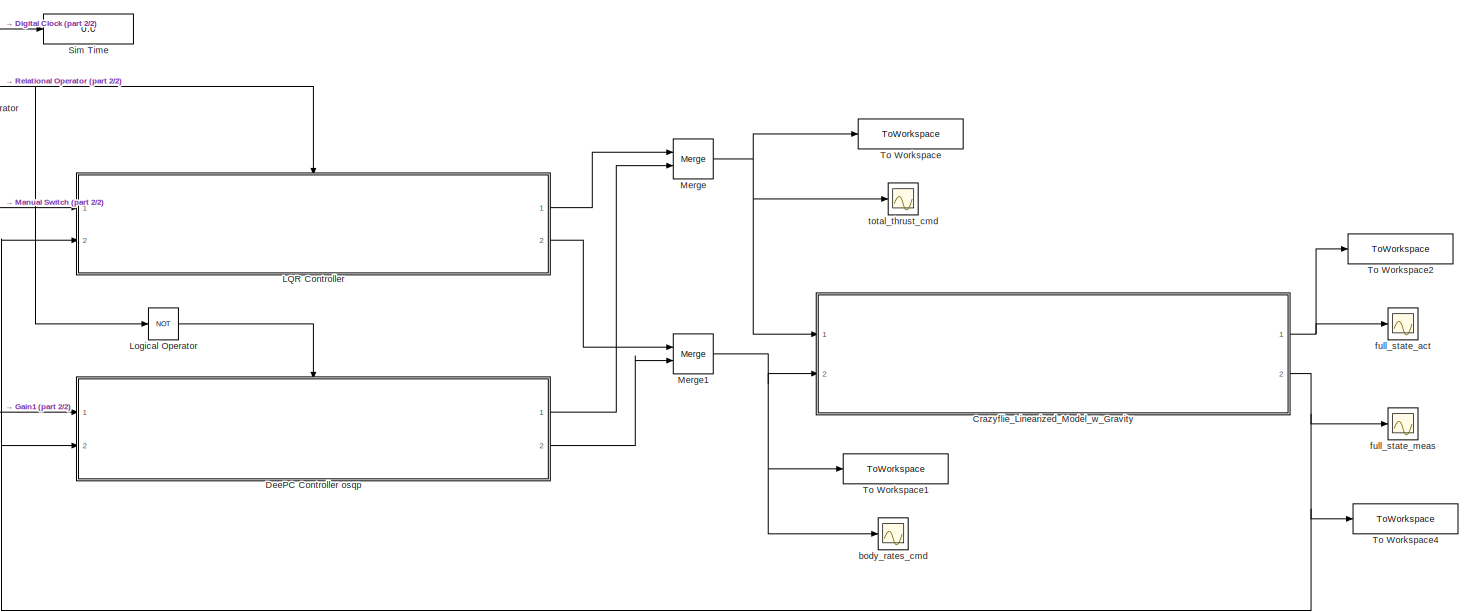
[diagram: root canvas - part 1/2, center side, full height]
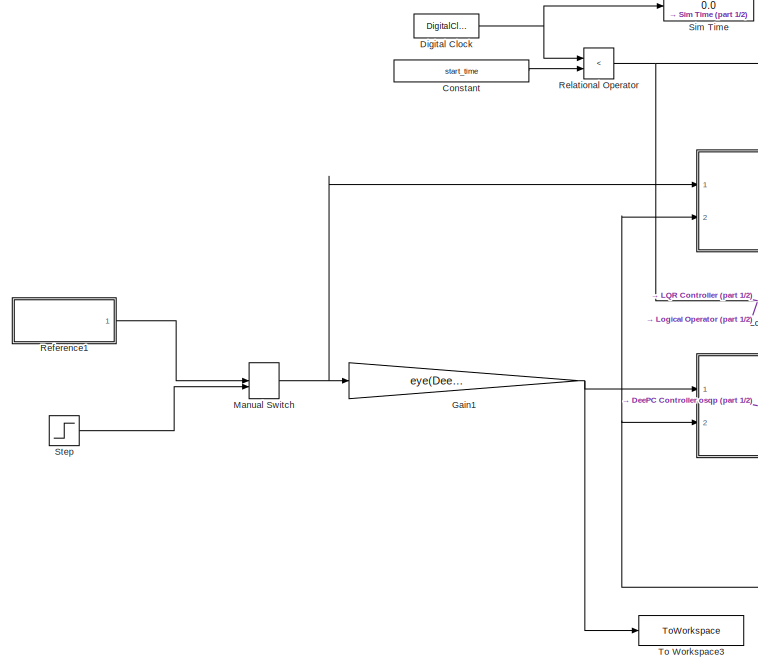
[diagram: root canvas - part 2/2, left side, full height]
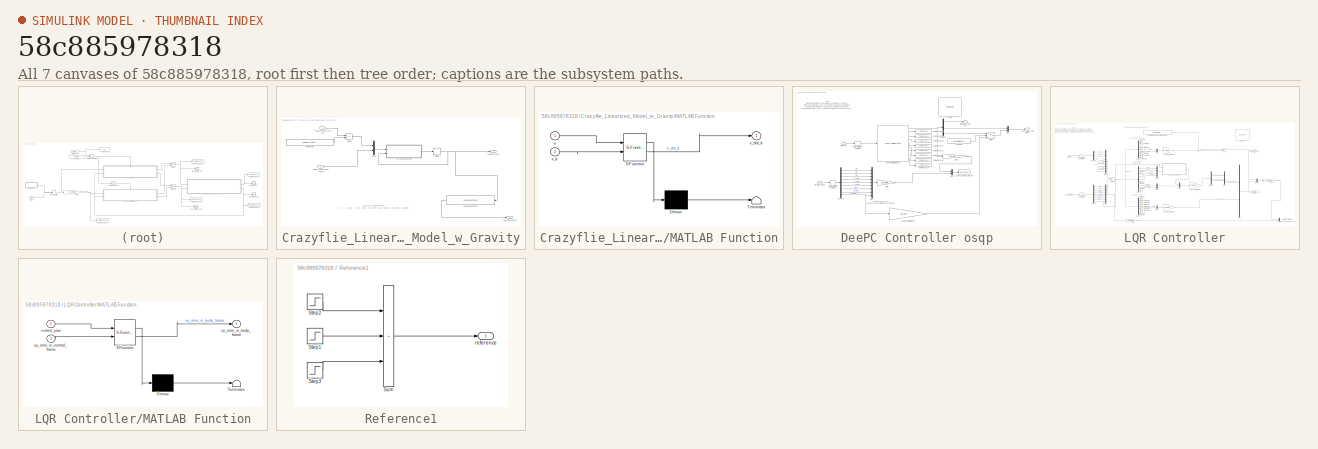
[diagram: thumbnail index - all 7 canvases of the model, root first then tree order]
MODEL slx_58c885978318
KIND model
CONFIG AbsTol = auto
CONFIG EnableMultiTasking = off
CONFIG FixedStep = auto
CONFIG MaxStep = auto
CONFIG MinStep = auto
CONFIG RelTol = 1e-3
CONFIG SampleTimeConstraint = Unconstrained
CONFIG SolverName = VariableStepAuto
CONFIG StartTime = 0.0
CONFIG StopTime = sim_time
BLOCK [Constant] Constant
  Value = start_time
BLOCK [SubSystem] Crazyflie_Linearized_Model_w_Gravity
  AncestorBlock = Crazyflie_Library/Crazyflie_Linearized_Model_w_Gravity
  Ports = [2, 2]
  RequestExecContextInheritance = off
BLOCK [Sum] Crazyflie_Linearized_Model_w_Gravity/Add1
  IconShape = rectangular
  Inputs = +-
  Ports = [2, 1]
BLOCK [Constant] Crazyflie_Linearized_Model_w_Gravity/Constant
  Value = param.nrotor_vehicle_mass_true * param.g
BLOCK [Delay] Crazyflie_Linearized_Model_w_Gravity/Delay
  DelayLength = 1
  InitialCondition = param.nrotor_initial_condition(1:9)
  InputPortMap = u0
  Ports = [1, 1]
BLOCK [SubSystem] Crazyflie_Linearized_Model_w_Gravity/MATLAB Function
  ErrorFcn = Stateflow.Translate.translate
  PermitHierarchicalResolution = ExplicitOnly
  Ports = [2, 1]
  RequestExecContextInheritance = off
  SFBlockType = MATLAB Function
  TreatAsAtomicUnit = on
BLOCK [Demux] Crazyflie_Linearized_Model_w_Gravity/MATLAB Function/ Demux 
  Outputs = 1
  Ports = [1, 1]
BLOCK [S-Function] Crazyflie_Linearized_Model_w_Gravity/MATLAB Function/ SFunction 
  EnableBusSupport = on
  FunctionName = sf_sfun
  Parameters = Ad,Bd
  PortCounts = [2 2]
  Ports = [2, 2]
  SFcnIsStateOwnerBlock = off
  SFunctionDeploymentMode = off
  Tag = Stateflow S-Function 3
BLOCK [Terminator] Crazyflie_Linearized_Model_w_Gravity/MATLAB Function/ Terminator 
BLOCK [Inport] Crazyflie_Linearized_Model_w_Gravity/MATLAB Function/u
BLOCK [Outport] Crazyflie_Linearized_Model_w_Gravity/MATLAB Function/x_dot_k
BLOCK [Inport] Crazyflie_Linearized_Model_w_Gravity/MATLAB Function/x_k
  Port = 2
BLOCK [Reference] Crazyflie_Linearized_Model_w_Gravity/Measurements  REF=Crazyflie_Library/Crazyflie_Linearized_Model_w_Gravity/Measurements
  Ports = [1, 1]
  SourceBlock = Crazyflie_Library/Crazyflie_Linearized_Model_w_Gravity/Measurements
  SourceType = SubSystem
BLOCK [Mux] Crazyflie_Linearized_Model_w_Gravity/Mux
  DisplayOption = bar
  Inputs = 2
  Ports = [2, 1]
BLOCK [Inport] Crazyflie_Linearized_Model_w_Gravity/body_rates_cmd [rad//s]
  Port = 2
BLOCK [Outport] Crazyflie_Linearized_Model_w_Gravity/full_state_act
  VectorParamsAs1DForOutWhenUnconnected = off
BLOCK [Outport] Crazyflie_Linearized_Model_w_Gravity/full_state_meas
  Port = 2
  VectorParamsAs1DForOutWhenUnconnected = off
BLOCK [Inport] Crazyflie_Linearized_Model_w_Gravity/total_thrust_cmd [N]
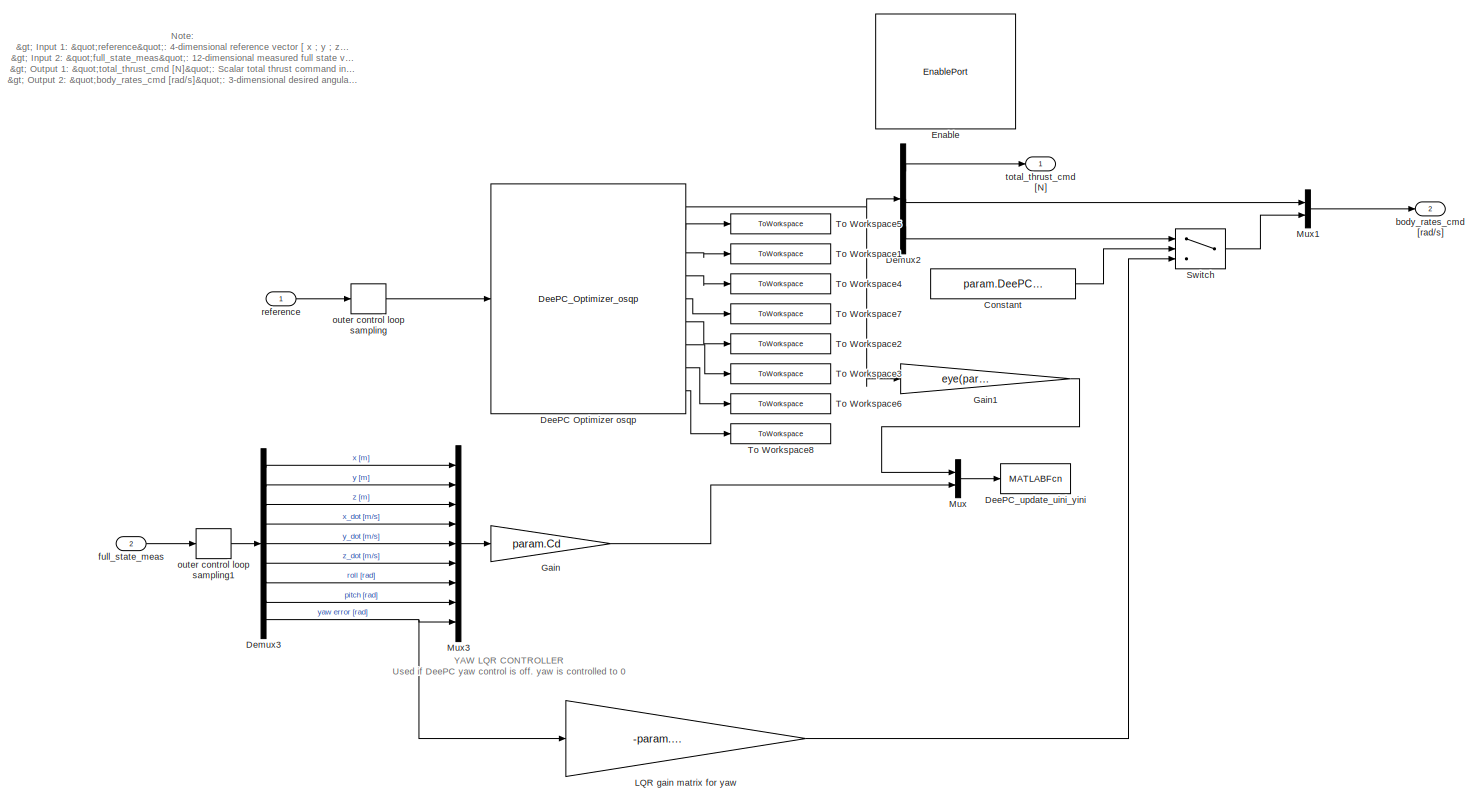
[diagram: DeePC Controller osqp - part 1/1, most of the canvas]
BLOCK [SubSystem] DeePC Controller osqp
  AncestorBlock = Crazyflie_Library/DeePC_Controller_osqp
  Ports = [2, 2, 1]
  RequestExecContextInheritance = off
BLOCK [Constant] DeePC Controller osqp/Constant
  Value = param.DeePC_yaw_control
BLOCK [Reference] DeePC Controller osqp/DeePC Optimizer osqp  REF=Crazyflie_Library/DeePC_Optimizer_osqp
  Ports = [1, 9]
  SourceBlock = Crazyflie_Library/DeePC_Optimizer_osqp
  SourceType = SubSystem
BLOCK [MATLABFcn] DeePC Controller osqp/DeePC_update_uini_yini
  MATLABFcn = DeePC_update_uini_yini
  OutputDimensions = 0
  Ports = [1]
BLOCK [Demux] DeePC Controller osqp/Demux2
  Outputs = [1 2 1]
  Ports = [1, 3]
BLOCK [Demux] DeePC Controller osqp/Demux3
  Outputs = 9
  Ports = [1, 9]
BLOCK [EnablePort] DeePC Controller osqp/Enable
  Ports = []
BLOCK [Gain] DeePC Controller osqp/Gain
  Gain = param.Cd
  Multiplication = Matrix(K*u)
BLOCK [Gain] DeePC Controller osqp/Gain1
  Gain = eye(param.m, 4)
  Multiplication = Matrix(K*u)
BLOCK [Gain] DeePC Controller osqp/LQR gain matrix for yaw
  Gain = -param.K_lqr_outer_loop(4,9)
  Multiplication = Matrix(K*u)
BLOCK [Mux] DeePC Controller osqp/Mux
  DisplayOption = bar
  Inputs = 2
  Ports = [2, 1]
BLOCK [Mux] DeePC Controller osqp/Mux1
  DisplayOption = bar
  Inputs = [2 1]
  Ports = [2, 1]
BLOCK [Mux] DeePC Controller osqp/Mux3
  DisplayOption = bar
  Inputs = 9
  Ports = [9, 1]
BLOCK [Switch] DeePC Controller osqp/Switch
  Criteria = u2 ~= 0
  InputSameDT = off
  SaturateOnIntegerOverflow = off
BLOCK [ToWorkspace] DeePC Controller osqp/To Workspace1
  FixptAsFi = on
  MaxDataPoints = inf
  Ports = [1]
  SampleTime = -1
  VariableName = sigma_out
BLOCK [ToWorkspace] DeePC Controller osqp/To Workspace2
  FixptAsFi = on
  MaxDataPoints = inf
  Ports = [1]
  SampleTime = -1
  VariableName = g_perf_out
BLOCK [ToWorkspace] DeePC Controller osqp/To Workspace3
  FixptAsFi = on
  MaxDataPoints = inf
  Ports = [1]
  SampleTime = -1
  VariableName = sigma_perf_out
BLOCK [ToWorkspace] DeePC Controller osqp/To Workspace4
  FixptAsFi = on
  MaxDataPoints = inf
  Ports = [1]
  SampleTime = -1
  VariableName = cost_out
BLOCK [ToWorkspace] DeePC Controller osqp/To Workspace5
  FixptAsFi = on
  MaxDataPoints = inf
  Ports = [1]
  SampleTime = -1
  VariableName = g_out
BLOCK [ToWorkspace] DeePC Controller osqp/To Workspace6
  FixptAsFi = on
  MaxDataPoints = inf
  Ports = [1]
  SampleTime = -1
  VariableName = cost_perf_out
BLOCK [ToWorkspace] DeePC Controller osqp/To Workspace7
  FixptAsFi = on
  MaxDataPoints = inf
  Ports = [1]
  SampleTime = -1
  VariableName = solve_time_out
BLOCK [ToWorkspace] DeePC Controller osqp/To Workspace8
  FixptAsFi = on
  MaxDataPoints = inf
  Ports = [1]
  SampleTime = -1
  VariableName = solve_time_perf_out
BLOCK [Outport] DeePC Controller osqp/body_rates_cmd [rad//s]
  Port = 2
  VectorParamsAs1DForOutWhenUnconnected = off
BLOCK [Inport] DeePC Controller osqp/full_state_meas
  Port = 2
BLOCK [ZeroOrderHold] DeePC Controller osqp/outer control loop sampling
  SampleTime = param.sample_time_controller_outer
BLOCK [ZeroOrderHold] DeePC Controller osqp/outer control loop sampling1
  SampleTime = param.sample_time_controller_outer
BLOCK [Inport] DeePC Controller osqp/reference
BLOCK [Outport] DeePC Controller osqp/total_thrust_cmd [N]
  VectorParamsAs1DForOutWhenUnconnected = off
BLOCK [DigitalClock] Digital Clock
  SampleTime = param.sample_time_controller_outer
BLOCK [Gain] Gain1
  Gain = eye(DeePC_param.Nref, 4)
  Multiplication = Matrix(K*u)
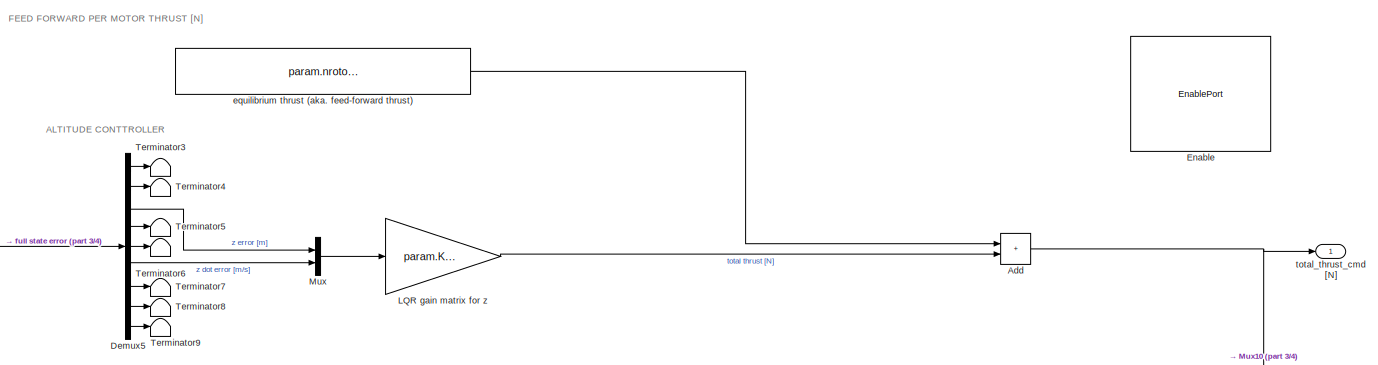
[diagram: LQR Controller - part 1/4, top center region]
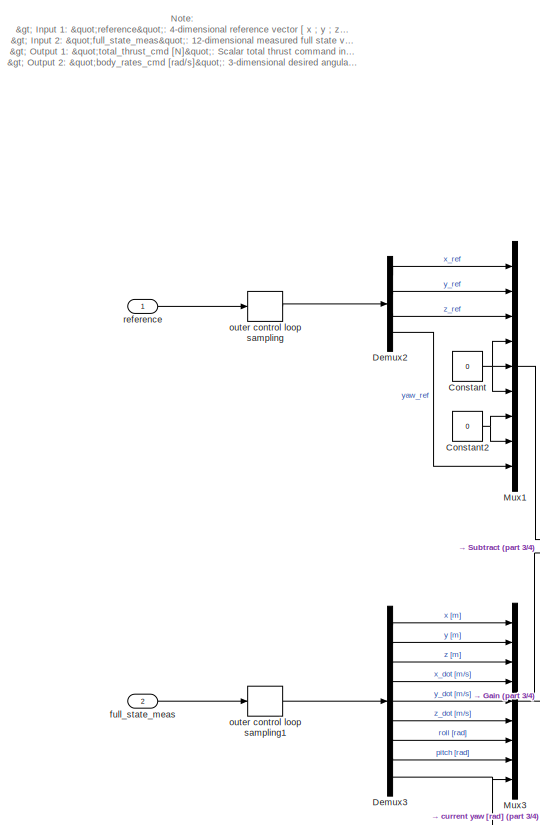
[diagram: LQR Controller - part 2/4, left side, full height]
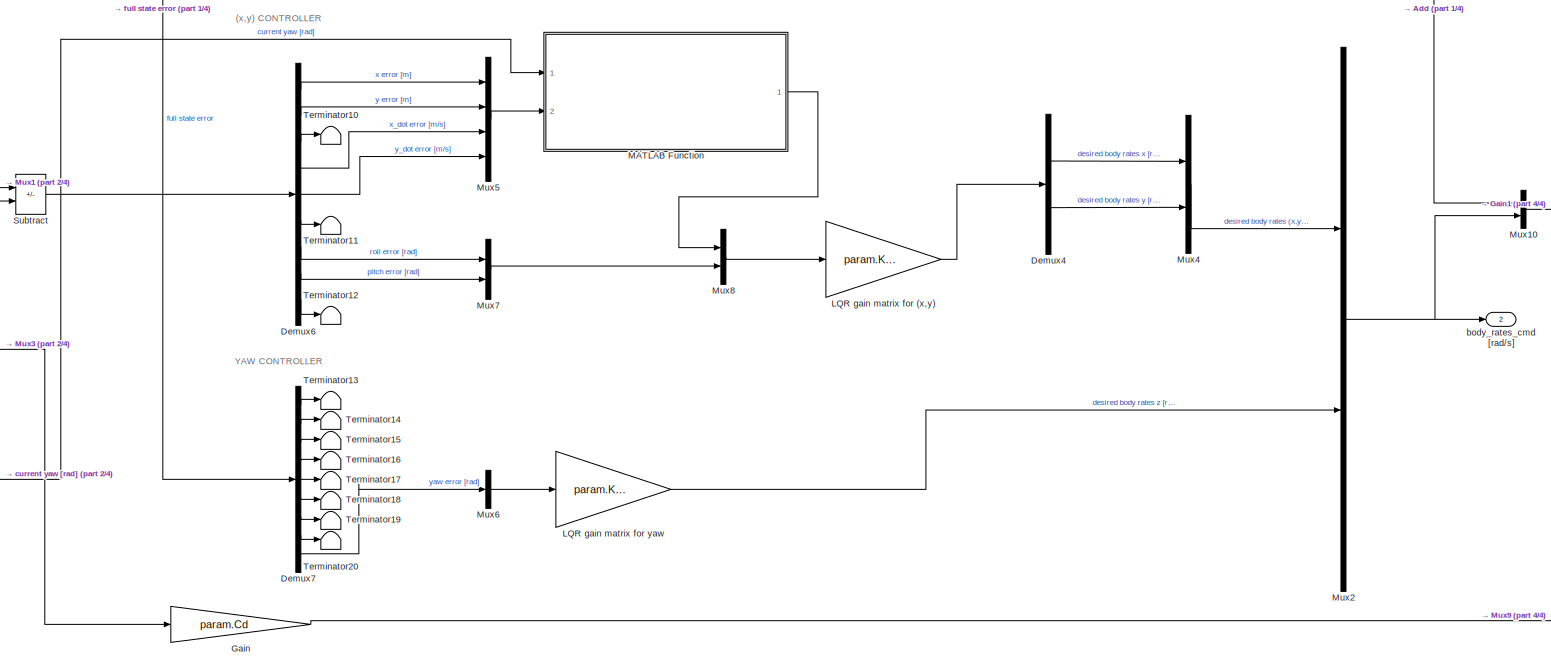
[diagram: LQR Controller - part 3/4, bottom center region]
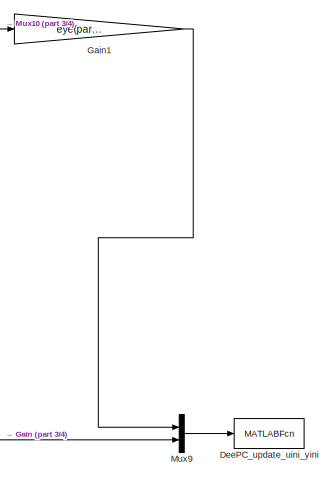
[diagram: LQR Controller - part 4/4, bottom right region]
BLOCK [SubSystem] LQR Controller
  AncestorBlock = Crazyflie_Library/LQR_Controller
  Ports = [2, 2, 1]
  RequestExecContextInheritance = off
BLOCK [Sum] LQR Controller/Add
  IconShape = rectangular
  Ports = [2, 1]
BLOCK [Constant] LQR Controller/Constant
  Value = 0
BLOCK [Constant] LQR Controller/Constant2
  Value = 0
BLOCK [MATLABFcn] LQR Controller/DeePC_update_uini_yini
  MATLABFcn = DeePC_update_uini_yini
  OutputDimensions = 0
  Ports = [1]
BLOCK [Demux] LQR Controller/Demux2
  Ports = [1, 4]
BLOCK [Demux] LQR Controller/Demux3
  Outputs = 9
  Ports = [1, 9]
BLOCK [Demux] LQR Controller/Demux4
  Outputs = 2
  Ports = [1, 2]
BLOCK [Demux] LQR Controller/Demux5
  Outputs = 9
  Ports = [1, 9]
BLOCK [Demux] LQR Controller/Demux6
  Outputs = 9
  Ports = [1, 9]
BLOCK [Demux] LQR Controller/Demux7
  Outputs = 9
  Ports = [1, 9]
BLOCK [EnablePort] LQR Controller/Enable
  Ports = []
BLOCK [Gain] LQR Controller/Gain
  Gain = param.Cd
  Multiplication = Matrix(K*u)
BLOCK [Gain] LQR Controller/Gain1
  Gain = eye(param.m, 4)
  Multiplication = Matrix(K*u)
BLOCK [Gain] LQR Controller/LQR gain matrix for (x,y)
  Gain = param.K_lqr_outer_loop(2:3,[1,2,4,5,7,8])
  Multiplication = Matrix(K*u)
BLOCK [Gain] LQR Controller/LQR gain matrix for yaw
  Gain = param.K_lqr_outer_loop(4,9)
  Multiplication = Matrix(K*u)
BLOCK [Gain] LQR Controller/LQR gain matrix for z
  Gain = param.K_lqr_outer_loop(1,[3,6])
  Multiplication = Matrix(K*u)
BLOCK [SubSystem] LQR Controller/MATLAB Function
  ErrorFcn = Stateflow.Translate.translate
  PermitHierarchicalResolution = ExplicitOnly
  Ports = [2, 1]
  RequestExecContextInheritance = off
  SFBlockType = MATLAB Function
  TreatAsAtomicUnit = on
BLOCK [Demux] LQR Controller/MATLAB Function/ Demux 
  Outputs = 1
  Ports = [1, 1]
BLOCK [S-Function] LQR Controller/MATLAB Function/ SFunction 
  EnableBusSupport = on
  FunctionName = sf_sfun
  PortCounts = [2 2]
  Ports = [2, 2]
  SFcnIsStateOwnerBlock = off
  SFunctionDeploymentMode = off
  Tag = Stateflow S-Function 7
BLOCK [Terminator] LQR Controller/MATLAB Function/ Terminator 
BLOCK [Inport] LQR Controller/MATLAB Function/current_yaw
BLOCK [Outport] LQR Controller/MATLAB Function/xy_error_in_body_frame
  VectorParamsAs1DForOutWhenUnconnected = off
BLOCK [Inport] LQR Controller/MATLAB Function/xy_error_in_inertial_frame
  Port = 2
BLOCK [Mux] LQR Controller/Mux
  DisplayOption = bar
  Inputs = 2
  Ports = [2, 1]
BLOCK [Mux] LQR Controller/Mux1
  DisplayOption = bar
  Inputs = 9
  Ports = [9, 1]
BLOCK [Mux] LQR Controller/Mux10
  DisplayOption = bar
  Inputs = 2
  Ports = [2, 1]
BLOCK [Mux] LQR Controller/Mux2
  DisplayOption = bar
  Inputs = 2
  Ports = [2, 1]
BLOCK [Mux] LQR Controller/Mux3
  DisplayOption = bar
  Inputs = 9
  Ports = [9, 1]
BLOCK [Mux] LQR Controller/Mux4
  DisplayOption = bar
  Inputs = 2
  Ports = [2, 1]
BLOCK [Mux] LQR Controller/Mux5
  DisplayOption = bar
  Ports = [4, 1]
BLOCK [Mux] LQR Controller/Mux6
  DisplayOption = bar
  Inputs = 1
  Ports = [1, 1]
BLOCK [Mux] LQR Controller/Mux7
  DisplayOption = bar
  Inputs = 2
  Ports = [2, 1]
BLOCK [Mux] LQR Controller/Mux8
  DisplayOption = bar
  Inputs = 2
  Ports = [2, 1]
BLOCK [Mux] LQR Controller/Mux9
  DisplayOption = bar
  Inputs = 2
  Ports = [2, 1]
BLOCK [Sum] LQR Controller/Subtract
  IconShape = rectangular
  Inputs = +-
  Ports = [2, 1]
BLOCK [Terminator] LQR Controller/Terminator10
BLOCK [Terminator] LQR Controller/Terminator11
BLOCK [Terminator] LQR Controller/Terminator12
BLOCK [Terminator] LQR Controller/Terminator13
BLOCK [Terminator] LQR Controller/Terminator14
BLOCK [Terminator] LQR Controller/Terminator15
BLOCK [Terminator] LQR Controller/Terminator16
BLOCK [Terminator] LQR Controller/Terminator17
BLOCK [Terminator] LQR Controller/Terminator18
BLOCK [Terminator] LQR Controller/Terminator19
BLOCK [Terminator] LQR Controller/Terminator20
BLOCK [Terminator] LQR Controller/Terminator3
BLOCK [Terminator] LQR Controller/Terminator4
BLOCK [Terminator] LQR Controller/Terminator5
BLOCK [Terminator] LQR Controller/Terminator6
BLOCK [Terminator] LQR Controller/Terminator7
BLOCK [Terminator] LQR Controller/Terminator8
BLOCK [Terminator] LQR Controller/Terminator9
BLOCK [Outport] LQR Controller/body_rates_cmd [rad//s]
  Port = 2
  VectorParamsAs1DForOutWhenUnconnected = off
BLOCK [Constant] LQR Controller/equilibrium thrust (aka. feed-forward thrust)
  Value = param.nrotor_vehicle_mass_for_controller * param.g
BLOCK [Inport] LQR Controller/full_state_meas
  Port = 2
BLOCK [ZeroOrderHold] LQR Controller/outer control loop sampling
  SampleTime = param.sample_time_controller_outer
BLOCK [ZeroOrderHold] LQR Controller/outer control loop sampling1
  SampleTime = param.sample_time_controller_outer
BLOCK [Inport] LQR Controller/reference
BLOCK [Outport] LQR Controller/total_thrust_cmd [N]
  VectorParamsAs1DForOutWhenUnconnected = off
BLOCK [Logic] Logical Operator
  AllPortsSameDT = off
  Operator = NOT
  OutDataTypeStr = boolean
  Ports = [1, 1]
BLOCK [ManualSwitch] Manual Switch
  CurrentSetting = 0
BLOCK [Merge] Merge
  Ports = [2, 1]
BLOCK [Merge] Merge1
  Ports = [2, 1]
BLOCK [SubSystem] Reference1
  Ports = [0, 1]
  RequestExecContextInheritance = off
BLOCK [Step] Reference1/Step1
  After = [-1;-1;1;0]
  Before = [0;0;0;0]
  SampleTime = 0
  Time = start_time+20
BLOCK [Step] Reference1/Step2
  After = [param.nrotor_final_condition(1:3); param.nrotor_final_condition(9)]
  Before = [param.nrotor_initial_condition(1:3); param.nrotor_initial_condition(9)]
  SampleTime = 0
  Time = start_time
BLOCK [Step] Reference1/Step3
  After = [1;1;-1;0]
  Before = [0;0;0;0]
  SampleTime = 0
  Time = start_time+40
BLOCK [Sum] Reference1/Sum
  IconShape = rectangular
  Inputs = +++
  Ports = [3, 1]
BLOCK [Outport] Reference1/reference
BLOCK [RelationalOperator] Relational Operator
  InputSameDT = off
  Operator = <
  OutDataTypeStr = boolean
  Ports = [2, 1]
  RndMeth = Simplest
BLOCK [Display] Sim Time
  Decimation = 1
  Ports = [1]
BLOCK [Step] Step
  After = [param.nrotor_final_condition(1:3); param.nrotor_final_condition(9)]
  Before = [param.nrotor_initial_condition(1:3); param.nrotor_initial_condition(9)]
  SampleTime = 0
  Time = start_time
BLOCK [ToWorkspace] To Workspace
  FixptAsFi = on
  MaxDataPoints = inf
  Ports = [1]
  SampleTime = param.sample_time_controller_outer
  VariableName = total_thrust_cmd
BLOCK [ToWorkspace] To Workspace1
  FixptAsFi = on
  MaxDataPoints = inf
  Ports = [1]
  SampleTime = param.sample_time_controller_outer
  VariableName = body_rates_cmd
BLOCK [ToWorkspace] To Workspace2
  FixptAsFi = on
  MaxDataPoints = inf
  Ports = [1]
  SampleTime = param.sample_time_controller_outer
  VariableName = full_state_act
BLOCK [ToWorkspace] To Workspace3
  FixptAsFi = on
  MaxDataPoints = inf
  Ports = [1]
  SampleTime = param.sample_time_controller_outer
  VariableName = r_out
BLOCK [ToWorkspace] To Workspace4
  FixptAsFi = on
  MaxDataPoints = inf
  Ports = [1]
  SampleTime = param.sample_time_controller_outer
  VariableName = full_state_meas
BLOCK [Scope] body_rates_cmd
  Floating = off
  NumInputPorts = 1
  Ports = [1]
  ScopeSpecificationString = Simulink.scopes.TimeScopeBlockCfg('CurrentConfiguration', extmgr.ConfigurationSet(extmgr.Configuration('Core','General UI',true),extmgr.Configuration('Core','Source UI',true),extmgr.Configuration('Sources','WiredSimulink',true,'DataLoggingVariableName','ScopeData2'),extmgr.Configuration('Visuals','Time Domain',true,'SerializedDisplays',{struct('MinYLimReal','-1.07282','MaxYLimReal','1.58336','YLab...<+1643ch>
BLOCK [Scope] full_state_act
  Floating = off
  NumInputPorts = 1
  Ports = [1]
  ScopeSpecificationString = Simulink.scopes.TimeScopeBlockCfg('CurrentConfiguration', extmgr.ConfigurationSet(extmgr.Configuration('Core','General UI',true,'FigureColor',[0 0 0]),extmgr.Configuration('Core','Source UI',true),extmgr.Configuration('Sources','WiredSimulink',true,'DataLoggingVariableName','ScopeData1'),extmgr.Configuration('Visuals','Time Domain',true,'SerializedDisplays',{struct('MinYLimReal','-2.78017','MaxYLi...<+2161ch>
BLOCK [Scope] full_state_meas
  Floating = off
  NumInputPorts = 1
  Ports = [1]
  ScopeSpecificationString = Simulink.scopes.TimeScopeBlockCfg('CurrentConfiguration', extmgr.ConfigurationSet(extmgr.Configuration('Core','General UI',true),extmgr.Configuration('Core','Source UI',true),extmgr.Configuration('Sources','WiredSimulink',true,'DataLoggingVariableName','ScopeData2'),extmgr.Configuration('Visuals','Time Domain',true,'SerializedDisplays',{struct('MinYLimReal','-1.94761','MaxYLimReal','2.65053','YLab...<+2256ch>
BLOCK [Scope] total_thrust_cmd
  Floating = off
  NumInputPorts = 1
  Ports = [1]
  ScopeSpecificationString = Simulink.scopes.TimeScopeBlockCfg('CurrentConfiguration', extmgr.ConfigurationSet(extmgr.Configuration('Core','General UI',true),extmgr.Configuration('Core','Source UI',true),extmgr.Configuration('Sources','WiredSimulink',true,'DataLoggingVariableName','ScopeData1'),extmgr.Configuration('Visuals','Time Domain',true,'SerializedDisplays',{struct('MinYLimReal','-0.07985','MaxYLimReal','0.71863','YLab...<+1484ch>
ANNOTATION Crazyflie_Linearized_Model_w_Gravity: full state measurement (x, y, z, x_dot, y_dot, z_dot, roll, pitch, yaw, roll_dot, pitch_dot, yaw_dot)
ANNOTATION DeePC Controller osqp: Note: > Input 1: "reference": 4-dimensional reference vector [ x ; y ; z ; yaw ]. > Input 2: "full_state_meas": 12-dimensional measured full state vector [ position ; velocity ; euler angles ; euler rates ] > Output 1: "total_thrust_cmd [N]": Scalar total thrust command in [Newtons] > Output 2: "body_rates_cmd [rad/s]": 3-dimensional desired angular rates about body frame [ x ; y ; z ] axes
ANNOTATION DeePC Controller osqp: YAW LQR CONTROLLER Used if DeePC yaw control is off. yaw is controlled to 0
ANNOTATION LQR Controller: (x,y) CONTROLLER
ANNOTATION LQR Controller: Note: > Input 1: "reference": 4-dimensional reference vector [ x ; y ; z ; yaw ]. > Input 2: "full_state_meas": 12-dimensional measured full state vector [ position ; velocity ; euler angles ; euler rates ] > Output 1: "total_thrust_cmd [N]": Scalar total thrust command in [Newtons] > Output 2: "body_rates_cmd [rad/s]": 3-dimensional desired angular rates about body frame [ x ; y ; z ] axes
ANNOTATION LQR Controller: ALTITUDE CONTTROLLER
ANNOTATION LQR Controller: FEED FORWARD PER MOTOR THRUST [N]
ANNOTATION LQR Controller: YAW CONTROLLER
LINE Constant:1 -> Relational Operator:2
NET Crazyflie_Linearized_Model_w_Gravity:1 -> To Workspace2:1, full_state_act:1
NET Crazyflie_Linearized_Model_w_Gravity:2 -> DeePC Controller osqp:2, LQR Controller:2, To Workspace4:1, full_state_meas:1
LINE DeePC Controller osqp:1 -> Merge:2
LINE DeePC Controller osqp:2 -> Merge1:2
NET Digital Clock:1 -> Relational Operator:1, Sim Time:1
NET Gain1:1 -> DeePC Controller osqp:1, To Workspace3:1
LINE LQR Controller:1 -> Merge:1
LINE LQR Controller:2 -> Merge1:1
LINE Logical Operator:1 -> DeePC Controller osqp:enable
NET Manual Switch:1 -> Gain1:1, LQR Controller:1
NET Merge1:1 -> Crazyflie_Linearized_Model_w_Gravity:2, To Workspace1:1, body_rates_cmd:1
NET Merge:1 -> Crazyflie_Linearized_Model_w_Gravity:1, To Workspace:1, total_thrust_cmd:1
LINE Reference1/Step1:1 -> Reference1/Sum:2
LINE Reference1/Step2:1 -> Reference1/Sum:1
LINE Reference1/Step3:1 -> Reference1/Sum:3
LINE Reference1/Sum:1 -> Reference1/reference:1
LINE Reference1:1 -> Manual Switch:1
NET Relational Operator:1 -> LQR Controller:enable, Logical Operator:1
LINE Step:1 -> Manual Switch:2
note: NET lines group one-source signal fan-out (src -> all destinations, sorted); 1:1 wires keep LINE
CHART Crazyflie_Linearized_Model_w_Gravity/MATLAB Function states=1 transitions=1
  STATE_LABEL 'eML_blk_kernel()'
  STATE_LABEL 'SCRIPT:\nfunction x_dot_k = fcn(u,x_k, Ad, Bd)\n\nx_dot_k = zeros(9,1);\n\nx_dot_k = Ad*x_k + Bd*u;\n'
CHART LQR Controller/MATLAB Function states=1 transitions=1
  STATE_LABEL 'eML_blk_kernel()'
  STATE_LABEL 'SCRIPT:\nfunction xy_error_in_body_frame = rotate_xy_intertial_to_body( current_yaw , xy_error_in_inertial_frame )\n% ----------------------------------------------------------------------- %\n% DESCRIPTION:\n% This function rotates an (x,y) coordainte and (x_dot,y_dot) velocity\n% vector from the interial frame into (approximately) the body frame. The\n% approximate is because the rotation into the bod...<+1508ch>'
CHART  states=0 transitions=0
CHART  states=0 transitions=0
